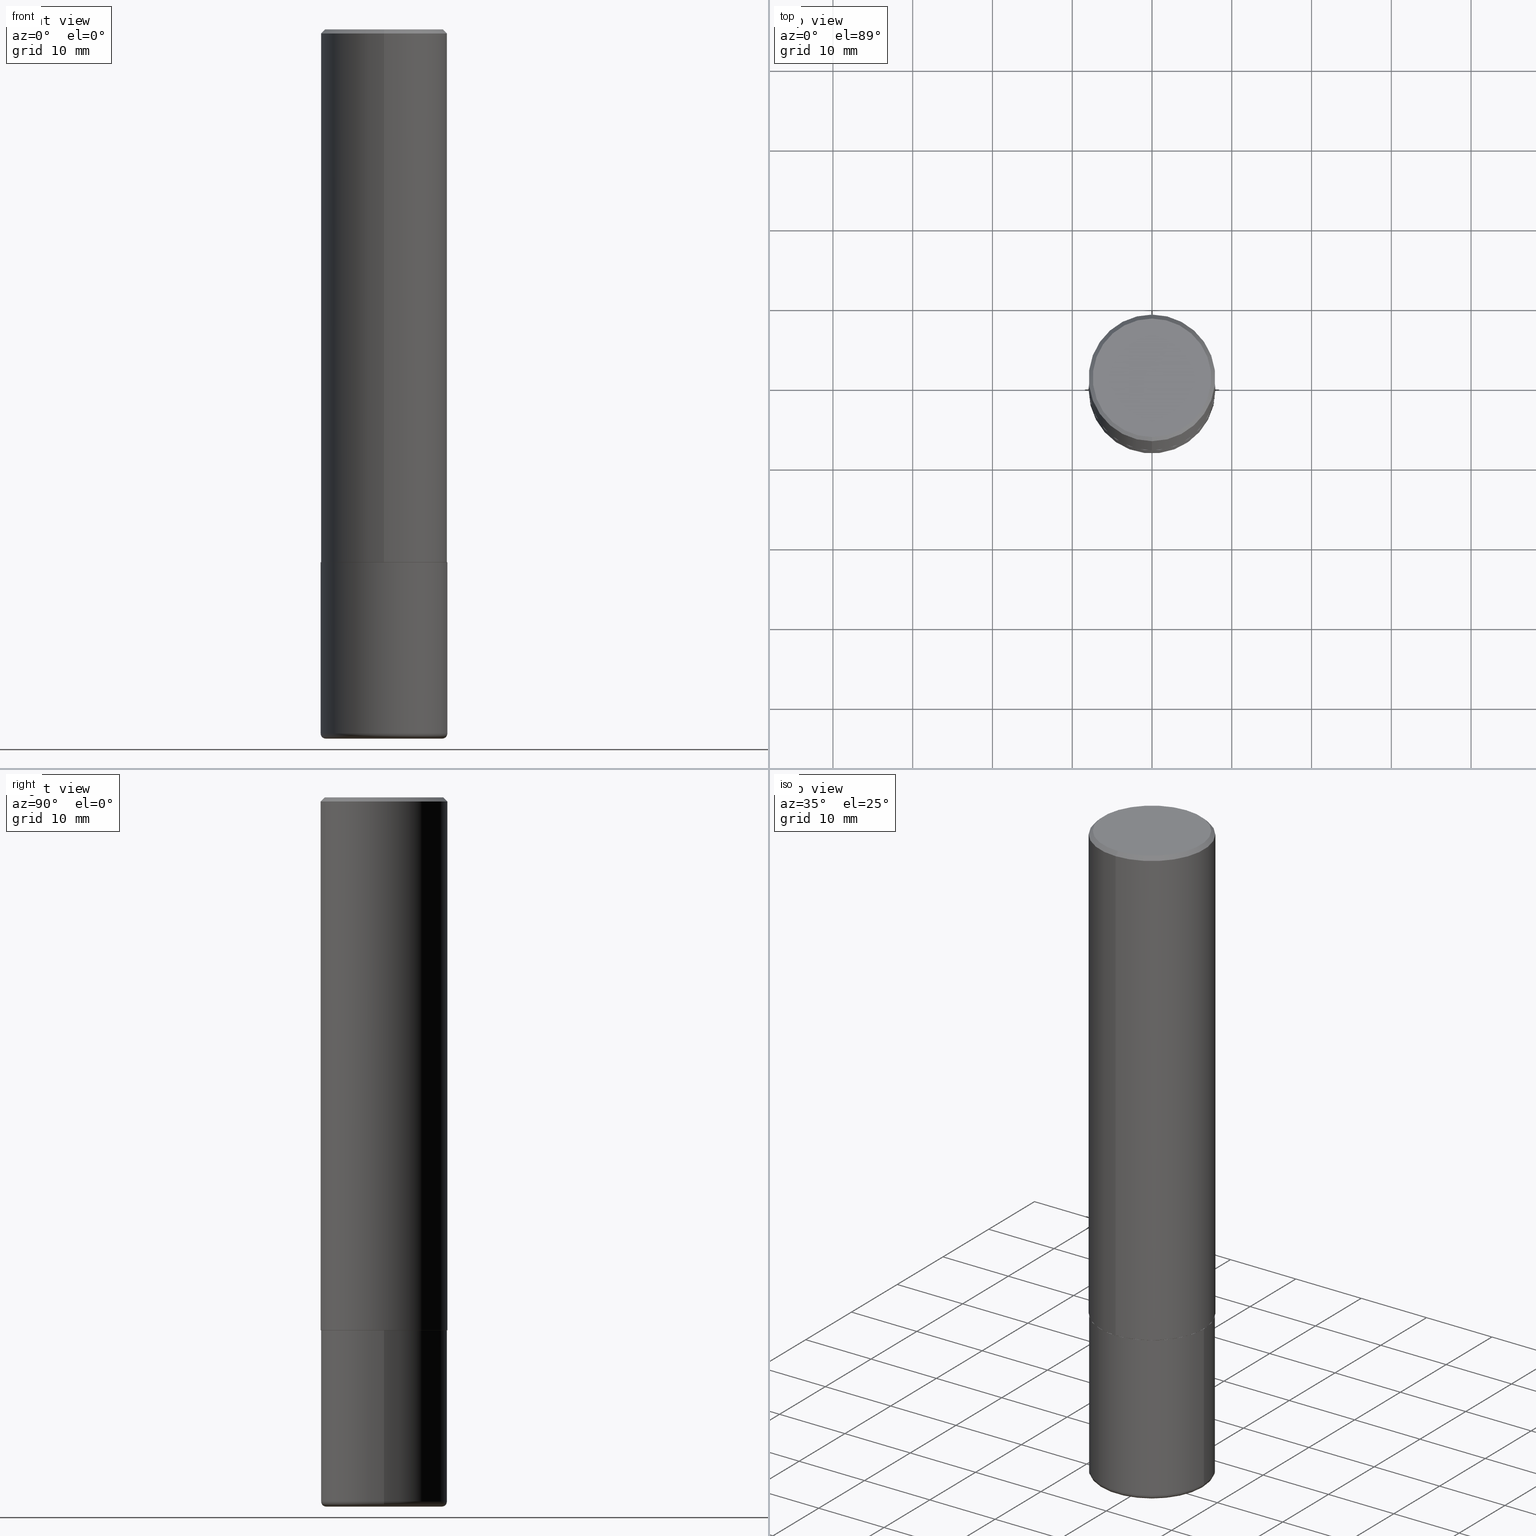
[diagram: canonical four-view strip — front | top / right | iso, engineering-drawing reading convention]
A machine part, canonical four-view strip (front | top / right | iso — engineering-drawing reading convention). The complete STEP part file that produces these views, byte-faithful:
ISO-10303-21;
HEADER;
FILE_DESCRIPTION (( 'STEP AP203' ),
    '1' );
FILE_NAME ('91246.STEP',
    '2024-03-06T17:17:19',
    ( '' ),
    ( '' ),
    'SwSTEP 2.0',
    'SolidWorks 2023',
    '' );
FILE_SCHEMA (( 'CONFIG_CONTROL_DESIGN' ));
ENDSEC;

DATA;
#1 = ORIENTED_EDGE ( 'NONE', *, *, #336, .F. ) ;
#2 = FACE_OUTER_BOUND ( 'NONE', #213, .T. ) ;
#3 = EDGE_CURVE ( 'NONE', #83, #241, #281, .T. ) ;
#4 = DIRECTION ( 'NONE',  ( -2.446380613041465709E-29, 3.490175579528058691E-15, 1.000000000000000000 ) ) ;
#5 = CIRCLE ( 'NONE', #239, 0.3114999999999999991 ) ;
#6 = PERSON_AND_ORGANIZATION_ROLE ( 'design_owner' ) ;
#7 = PRODUCT_DEFINITION_SHAPE ( 'NONE', 'NONE',  #57 ) ;
#8 = DIRECTION ( 'NONE',  ( -2.445468806185136597E-29, 3.491481338843145583E-15, 1.000000000000000000 ) ) ;
#9 = APPROVAL_ROLE ( '' ) ;
#10 = CARTESIAN_POINT ( 'NONE',  ( -2.075300644325888282E-15, -0.2925000000000001488, 8.497539228082782991E-16 ) ) ;
#11 = CALENDAR_DATE ( 2024, 6, 3 ) ;
#12 = EDGE_LOOP ( 'NONE', ( #324, #301 ) ) ;
#13 = CC_DESIGN_DATE_AND_TIME_ASSIGNMENT ( #202, #138, ( #57 ) ) ;
#14 = PRODUCT_DEFINITION_FORMATION_WITH_SPECIFIED_SOURCE ( 'ANY', '', #129, .NOT_KNOWN. ) ;
#15 = EDGE_LOOP ( 'NONE', ( #216, #244, #122, #316 ) ) ;
#16 = CARTESIAN_POINT ( 'NONE',  ( -0.2875000000000000333, -1.009008728716964076E-14, -3.475000000000000089 ) ) ;
#17 = APPROVAL_STATUS ( 'not_yet_approved' ) ;
#18 = LOCAL_TIME ( 12, 17, 19.00000000000000000, #119 ) ;
#19 = PERSON_AND_ORGANIZATION_ROLE ( 'design_supplier' ) ;
#20 = TOROIDAL_SURFACE ( 'NONE', #149, 0.2875000000000000333, 0.02499999999999966485 ) ;
#21 = EDGE_CURVE ( 'NONE', #208, #390, #38, .T. ) ;
#22 = ORIENTED_EDGE ( 'NONE', *, *, #284, .F. ) ;
#23 = CARTESIAN_POINT ( 'NONE',  ( 2.182175836776958741E-15, 0.3124999999999999445, -0.02000000000000116268 ) ) ;
#24 = FACE_OUTER_BOUND ( 'NONE', #139, .T. ) ;
#25 = VECTOR ( 'NONE', #87, 39.37007874015748143 ) ;
#26 = DIRECTION ( 'NONE',  ( -6.982962677686265133E-15, -1.000000000000000000, 3.496765431890256920E-15 ) ) ;
#27 = ORIENTED_EDGE ( 'NONE', *, *, #305, .T. ) ;
#28 = CARTESIAN_POINT ( 'NONE',  ( 8.498004101493350346E-29, -1.213289765247992943E-14, -3.475000000000000089 ) ) ;
#29 = FACE_OUTER_BOUND ( 'NONE', #104, .T. ) ;
#30 = PERSON_AND_ORGANIZATION ( #318, #121 ) ;
#31 = ADVANCED_FACE ( 'NONE', ( #118 ), #224, .F. ) ;
#32 = CYLINDRICAL_SURFACE ( 'NONE', #145, 0.3125000000000001665 ) ;
#33 = CALENDAR_DATE ( 2024, 6, 3 ) ;
#34 = DIRECTION ( 'NONE',  ( -1.000000000000000000, 6.982962677686265922E-15, -4.876176775795935793E-29 ) ) ;
#35 = ORIENTED_EDGE ( 'NONE', *, *, #3, .T. ) ;
#36 = CARTESIAN_POINT ( 'NONE',  ( 6.433981012299055047E-29, -9.179161774158793758E-15, -2.629999999999999893 ) ) ;
#37 = DIRECTION ( 'NONE',  ( -2.445468806185136597E-29, 3.491481338843145583E-15, 1.000000000000000000 ) ) ;
#38 = LINE ( 'NONE', #161, #254 ) ;
#39 = CARTESIAN_POINT ( 'NONE',  ( -0.3124999999999998890, -9.912451603229616350E-15, -3.474999999999999201 ) ) ;
#40 = AXIS2_PLACEMENT_3D ( 'NONE', #282, #114, #371 ) ;
#41 = DIRECTION ( 'NONE',  ( -6.982962677686265922E-15, -1.000000000000000000, 3.496765431890253764E-15 ) ) ;
#42 = APPROVAL_STATUS ( 'not_yet_approved' ) ;
#43 = CIRCLE ( 'NONE', #273, 0.3125000000000002776 ) ;
#44 = DIRECTION ( 'NONE',  ( -4.937700262165728178E-15, -0.7071067811867141062, 0.7071067811863809283 ) ) ;
#45 = CIRCLE ( 'NONE', #303, 0.3114999999999999991 ) ;
#46 = VERTEX_POINT ( 'NONE', #414 ) ;
#47 = CARTESIAN_POINT ( 'NONE',  ( 6.433981012299055047E-29, -9.179161774158793758E-15, -2.629999999999999893 ) ) ;
#48 = PERSON_AND_ORGANIZATION ( #318, #121 ) ;
#49 = DIRECTION ( 'NONE',  ( 7.105427357601001859E-15, 1.000000000000000000, -3.491481338843145583E-15 ) ) ;
#50 = PERSON_AND_ORGANIZATION ( #318, #121 ) ;
#51 = TOROIDAL_SURFACE ( 'NONE', #128, 0.2875000000000000333, 0.02499999999999966485 ) ;
#52 = EDGE_LOOP ( 'NONE', ( #312, #53, #177, #359 ) ) ;
#53 = ORIENTED_EDGE ( 'NONE', *, *, #226, .T. ) ;
#54 = CARTESIAN_POINT ( 'NONE',  ( 6.431582960266909339E-29, -9.182595921157471648E-15, -2.629999999999999893 ) ) ;
#55 = VERTEX_POINT ( 'NONE', #348 ) ;
#56 = LINE ( 'NONE', #409, #407 ) ;
#57 = PRODUCT_DEFINITION ( 'UNKNOWN', '', #14, #73 ) ;
#58 = CIRCLE ( 'NONE', #108, 0.02499999999999966485 ) ;
#59 = APPROVAL ( #63, 'UNSPECIFIED' ) ;
#60 =( CONVERSION_BASED_UNIT ( 'INCH', #66 ) LENGTH_UNIT ( ) NAMED_UNIT ( #355 ) );
#61 = ORIENTED_EDGE ( 'NONE', *, *, #290, .T. ) ;
#62 = CONICAL_SURFACE ( 'NONE', #349, 0.3114999999999999991, 0.7853981633976873100 ) ;
#63 = APPROVAL_STATUS ( 'not_yet_approved' ) ;
#64 = FACE_OUTER_BOUND ( 'NONE', #98, .T. ) ;
#65 = EDGE_CURVE ( 'NONE', #241, #132, #116, .T. ) ;
#66 = LENGTH_MEASURE_WITH_UNIT ( LENGTH_MEASURE( 0.02539999999999999897 ), #95 );
#67 = VERTEX_POINT ( 'NONE', #123 ) ;
#68 = CARTESIAN_POINT ( 'NONE',  ( -0.3125000000000000000, 2.220446049250313081E-15, -1.537167215704658232E-29 ) ) ;
#69 = DIRECTION ( 'NONE',  ( -6.982962677686265922E-15, -1.000000000000000000, 3.490175579528058296E-15 ) ) ;
#70 = ADVANCED_BREP_SHAPE_REPRESENTATION ( '91246', ( #214, #78, #99 ), #186 ) ;
#71 = CARTESIAN_POINT ( 'NONE',  ( 8.559140821647976968E-29, -1.222018468595100619E-14, -3.499999999999999112 ) ) ;
#72 = APPROVAL_ROLE ( '' ) ;
#73 = DESIGN_CONTEXT ( 'detailed design', #361, 'design' ) ;
#74 = ADVANCED_FACE ( 'NONE', ( #178 ), #408, .T. ) ;
#75 = CARTESIAN_POINT ( 'NONE',  ( 8.498004101493349225E-29, -1.213289765247992785E-14, -3.474999999999999201 ) ) ;
#76 = PERSON_AND_ORGANIZATION_ROLE ( 'creator' ) ;
#77 = AXIS2_PLACEMENT_3D ( 'NONE', #237, #364, #69 ) ;
#78 = MANIFOLD_SOLID_BREP ( 'Body-Move/Copy2[2]', #220 ) ;
#79 = ADVANCED_FACE ( 'NONE', ( #24 ), #326, .T. ) ;
#80 = EDGE_LOOP ( 'NONE', ( #188, #413 ) ) ;
#81 = CIRCLE ( 'NONE', #285, 0.3125000000000000000 ) ;
#82 = CARTESIAN_POINT ( 'NONE',  ( 6.431534631686015280E-29, -9.175671598579269369E-15, -2.629000000000000448 ) ) ;
#83 = VERTEX_POINT ( 'NONE', #374 ) ;
#84 = CIRCLE ( 'NONE', #225, 0.2925000000000001488 ) ;
#85 = FACE_OUTER_BOUND ( 'NONE', #164, .T. ) ;
#86 = EDGE_LOOP ( 'NONE', ( #111, #252, #228, #320 ) ) ;
#87 = DIRECTION ( 'NONE',  ( -2.445468806185136877E-29, 3.491481338843145188E-15, 1.000000000000000000 ) ) ;
#88 = DIRECTION ( 'NONE',  ( -2.445468806185136597E-29, 3.491481338843145583E-15, 1.000000000000000000 ) ) ;
#89 = DIRECTION ( 'NONE',  ( -4.851104656540958753E-15, -0.7071067811865492381, -0.7071067811865457964 ) ) ;
#90 = EDGE_CURVE ( 'NONE', #46, #55, #179, .T. ) ;
#91 = DIRECTION ( 'NONE',  ( -6.982962677686265133E-15, -1.000000000000000000, 3.490175579528058691E-15 ) ) ;
#92 = APPROVAL_PERSON_ORGANIZATION ( #48, #197, #9 ) ;
#93 = CLOSED_SHELL ( 'NONE', ( #147, #181, #330, #198, #152, #391 ) ) ;
#94 = CIRCLE ( 'NONE', #306, 0.3125000000000000000 ) ;
#95 =( LENGTH_UNIT ( ) NAMED_UNIT ( * ) SI_UNIT ( $, .METRE. ) );
#96 = EDGE_CURVE ( 'NONE', #384, #308, #183, .T. ) ;
#97 = DIRECTION ( 'NONE',  ( 1.000000000000000000, -6.982962677686269077E-15, 0.000000000000000000 ) ) ;
#98 = EDGE_LOOP ( 'NONE', ( #410, #22 ) ) ;
#99 = AXIS2_PLACEMENT_3D ( 'NONE', #155, #418, #153 ) ;
#100 = CARTESIAN_POINT ( 'NONE',  ( 6.433981012299055047E-29, -9.179161774158793758E-15, -2.629999999999999893 ) ) ;
#101 = DIRECTION ( 'NONE',  ( -6.982962677686265922E-15, -1.000000000000000000, 3.490175579528058296E-15 ) ) ;
#102 = PERSON_AND_ORGANIZATION ( #318, #121 ) ;
#103 = VERTEX_POINT ( 'NONE', #218 ) ;
#104 = EDGE_LOOP ( 'NONE', ( #369, #270, #265, #307 ) ) ;
#105 = CARTESIAN_POINT ( 'NONE',  ( 8.559140821647976968E-29, -1.222018468595100619E-14, -3.499999999999999112 ) ) ;
#106 = SHAPE_DEFINITION_REPRESENTATION ( #7, #70 ) ;
#107 = DIRECTION ( 'NONE',  ( -6.982962677686265922E-15, -1.000000000000000000, 3.507991003100177457E-15 ) ) ;
#108 = AXIS2_PLACEMENT_3D ( 'NONE', #271, #238, #135 ) ;
#109 = CC_DESIGN_PERSON_AND_ORGANIZATION_ASSIGNMENT ( #416, #387, ( #57 ) ) ;
#110 = DIRECTION ( 'NONE',  ( -6.982962677686265922E-15, -1.000000000000000000, 3.496765431890253764E-15 ) ) ;
#111 = ORIENTED_EDGE ( 'NONE', *, *, #90, .F. ) ;
#112 = ORIENTED_EDGE ( 'NONE', *, *, #342, .F. ) ;
#113 = DIRECTION ( 'NONE',  ( -2.445468806185136597E-29, 3.491481338843145583E-15, 1.000000000000000000 ) ) ;
#114 = DIRECTION ( 'NONE',  ( -2.446380613041465709E-29, 3.490175579528058691E-15, 1.000000000000000000 ) ) ;
#115 = AXIS2_PLACEMENT_3D ( 'NONE', #150, #210, #154 ) ;
#116 = LINE ( 'NONE', #291, #395 ) ;
#117 = ORIENTED_EDGE ( 'NONE', *, *, #96, .F. ) ;
#118 = FACE_OUTER_BOUND ( 'NONE', #333, .T. ) ;
#119 = COORDINATED_UNIVERSAL_TIME_OFFSET ( 5, 0, .BEHIND. ) ;
#120 = AXIS2_PLACEMENT_3D ( 'NONE', #344, #182, #26 ) ;
#121 = ORGANIZATION ( 'UNSPECIFIED', 'UNSPECIFIED', '' ) ;
#122 = ORIENTED_EDGE ( 'NONE', *, *, #249, .F. ) ;
#123 = CARTESIAN_POINT ( 'NONE',  ( -0.3125000000000000000, -8.437300737568386669E-15, -2.629999999999999893 ) ) ;
#124 = APPLICATION_PROTOCOL_DEFINITION ( 'international standard', 'config_control_design', 1994, #361 ) ;
#125 = DIRECTION ( 'NONE',  ( 2.446380613041465709E-29, -3.490175579528058691E-15, -1.000000000000000000 ) ) ;
#126 = LINE ( 'NONE', #383, #199 ) ;
#127 = PLANE ( 'NONE',  #148 ) ;
#128 = AXIS2_PLACEMENT_3D ( 'NONE', #28, #417, #130 ) ;
#129 = PRODUCT ( '91246', '91246', '', ( #288 ) ) ;
#130 = DIRECTION ( 'NONE',  ( 1.000000000000000000, -6.982962677686264344E-15, 4.883557194083111780E-29 ) ) ;
#131 = APPROVAL_DATE_TIME ( #294, #59 ) ;
#132 = VERTEX_POINT ( 'NONE', #317 ) ;
#133 = FACE_OUTER_BOUND ( 'NONE', #86, .T. ) ;
#134 = EDGE_LOOP ( 'NONE', ( #221, #343, #378, #388 ) ) ;
#135 = DIRECTION ( 'NONE',  ( 1.000000000000000000, -6.982962677686232001E-15, 0.000000000000000000 ) ) ;
#136 = EDGE_CURVE ( 'NONE', #398, #132, #351, .T. ) ;
#137 = CIRCLE ( 'NONE', #200, 0.02499999999999966485 ) ;
#138 = DATE_TIME_ROLE ( 'creation_date' ) ;
#139 = EDGE_LOOP ( 'NONE', ( #404, #174, #311, #211 ) ) ;
#140 = DIRECTION ( 'NONE',  ( -2.445468806185136597E-29, 3.491481338843145583E-15, 1.000000000000000000 ) ) ;
#141 = COORDINATED_UNIVERSAL_TIME_OFFSET ( 5, 0, .BEHIND. ) ;
#142 = EDGE_LOOP ( 'NONE', ( #146, #269, #235, #112 ) ) ;
#143 = EDGE_CURVE ( 'NONE', #55, #390, #358, .T. ) ;
#144 = AXIS2_PLACEMENT_3D ( 'NONE', #75, #267, #201 ) ;
#145 = AXIS2_PLACEMENT_3D ( 'NONE', #258, #184, #91 ) ;
#146 = ORIENTED_EDGE ( 'NONE', *, *, #305, .F. ) ;
#147 = ADVANCED_FACE ( 'NONE', ( #370 ), #175, .T. ) ;
#148 = AXIS2_PLACEMENT_3D ( 'NONE', #259, #189, #34 ) ;
#149 = AXIS2_PLACEMENT_3D ( 'NONE', #399, #195, #298 ) ;
#150 = CARTESIAN_POINT ( 'NONE',  ( 2.042516583223233723E-15, 0.2925000000000001488, -1.106437574113797536E-15 ) ) ;
#151 = DIRECTION ( 'NONE',  ( -2.446380613041465709E-29, 3.490175579528058691E-15, 1.000000000000000000 ) ) ;
#152 = ADVANCED_FACE ( 'NONE', ( #415 ), #51, .T. ) ;
#153 = DIRECTION ( 'NONE',  ( 1.000000000000000000, 0.000000000000000000, 0.000000000000000000 ) ) ;
#154 = DIRECTION ( 'NONE',  ( 6.982962677686265922E-15, 1.000000000000000000, -3.490175579528058691E-15 ) ) ;
#155 = CARTESIAN_POINT ( 'NONE',  ( 0.000000000000000000, 0.000000000000000000, 0.000000000000000000 ) ) ;
#156 = CARTESIAN_POINT ( 'NONE',  ( 6.431534631686015280E-29, -9.175671598579269369E-15, -2.629000000000000448 ) ) ;
#157 = CARTESIAN_POINT ( 'NONE',  ( 0.3124999999999998890, -1.431507348925688462E-14, -3.474999999999999201 ) ) ;
#158 = AXIS2_PLACEMENT_3D ( 'NONE', #304, #140, #328 ) ;
#159 = APPROVAL_ROLE ( '' ) ;
#160 = DIRECTION ( 'NONE',  ( 1.000000000000000000, -6.982962677686269077E-15, 0.000000000000000000 ) ) ;
#161 = CARTESIAN_POINT ( 'NONE',  ( -2.175192874099207646E-15, -0.3115000000000091585, -2.629999999999999005 ) ) ;
#162 = ADVANCED_FACE ( 'NONE', ( #2 ), #32, .T. ) ;
#163 = CC_DESIGN_PERSON_AND_ORGANIZATION_ASSIGNMENT ( #102, #76, ( #14 ) ) ;
#164 = EDGE_LOOP ( 'NONE', ( #275, #260, #247, #338 ) ) ;
#165 = CYLINDRICAL_SURFACE ( 'NONE', #158, 0.3125000000000000000 ) ;
#166 = VECTOR ( 'NONE', #240, 39.37007874015748143 ) ;
#167 = AXIS2_PLACEMENT_3D ( 'NONE', #82, #151, #110 ) ;
#168 = FACE_OUTER_BOUND ( 'NONE', #15, .T. ) ;
#169 = DIRECTION ( 'NONE',  ( -2.446380613041465709E-29, 3.490175579528058691E-15, 1.000000000000000000 ) ) ;
#170 = COORDINATED_UNIVERSAL_TIME_OFFSET ( 5, 0, .BEHIND. ) ;
#171 = UNCERTAINTY_MEASURE_WITH_UNIT (LENGTH_MEASURE( 1.000000000000000082E-05 ), #60, 'distance_accuracy_value', 'NONE');
#172 = AXIS2_PLACEMENT_3D ( 'NONE', #382, #125, #222 ) ;
#173 = CC_DESIGN_APPROVAL ( #266, ( #207 ) ) ;
#174 = ORIENTED_EDGE ( 'NONE', *, *, #3, .F. ) ;
#175 = CYLINDRICAL_SURFACE ( 'NONE', #206, 0.3125000000000000000 ) ;
#176 = EDGE_CURVE ( 'NONE', #390, #55, #43, .T. ) ;
#177 = ORIENTED_EDGE ( 'NONE', *, *, #242, .T. ) ;
#178 = FACE_OUTER_BOUND ( 'NONE', #142, .T. ) ;
#179 = LINE ( 'NONE', #313, #187 ) ;
#180 = AXIS2_PLACEMENT_3D ( 'NONE', #105, #365, #362 ) ;
#181 = ADVANCED_FACE ( 'NONE', ( #168 ), #20, .T. ) ;
#182 = DIRECTION ( 'NONE',  ( -2.446380613041465709E-29, 3.490175579528058691E-15, 1.000000000000000000 ) ) ;
#183 = LINE ( 'NONE', #251, #25 ) ;
#184 = DIRECTION ( 'NONE',  ( -2.446380613041465709E-29, 3.490175579528058691E-15, 1.000000000000000000 ) ) ;
#185 =( NAMED_UNIT ( * ) SI_UNIT ( $, .STERADIAN. ) SOLID_ANGLE_UNIT ( ) );
#186 =( GEOMETRIC_REPRESENTATION_CONTEXT ( 3 ) GLOBAL_UNCERTAINTY_ASSIGNED_CONTEXT ( ( #171 ) ) GLOBAL_UNIT_ASSIGNED_CONTEXT ( ( #60, #347, #185 ) ) REPRESENTATION_CONTEXT ( 'NONE', 'WORKASPACE' ) );
#187 = VECTOR ( 'NONE', #287, 39.37007874015748143 ) ;
#188 = ORIENTED_EDGE ( 'NONE', *, *, #321, .T. ) ;
#189 = DIRECTION ( 'NONE',  ( 2.438088387897960049E-29, -3.491481338843145188E-15, -1.000000000000000000 ) ) ;
#190 = PLANE ( 'NONE',  #272 ) ;
#191 = AXIS2_PLACEMENT_3D ( 'NONE', #71, #8, #334 ) ;
#192 = LOCAL_TIME ( 12, 17, 19.00000000000000000, #170 ) ;
#193 = ORIENTED_EDGE ( 'NONE', *, *, #176, .T. ) ;
#194 = CARTESIAN_POINT ( 'NONE',  ( 8.498004101493349225E-29, -1.213289765247992785E-14, -3.474999999999999201 ) ) ;
#195 = DIRECTION ( 'NONE',  ( -2.445468806185136597E-29, 3.491481338843145583E-15, 1.000000000000000000 ) ) ;
#196 = COORDINATED_UNIVERSAL_TIME_OFFSET ( 5, 0, .BEHIND. ) ;
#197 = APPROVAL ( #42, 'UNSPECIFIED' ) ;
#198 = ADVANCED_FACE ( 'NONE', ( #397 ), #165, .T. ) ;
#199 = VECTOR ( 'NONE', #356, 39.37007874015748143 ) ;
#200 = AXIS2_PLACEMENT_3D ( 'NONE', #16, #49, #277 ) ;
#201 = DIRECTION ( 'NONE',  ( 1.000000000000000000, -6.982962677686269077E-15, 0.000000000000000000 ) ) ;
#202 = DATE_AND_TIME ( #255, #18 ) ;
#203 = ORIENTED_EDGE ( 'NONE', *, *, #373, .T. ) ;
#204 = AXIS2_PLACEMENT_3D ( 'NONE', #36, #322, #385 ) ;
#205 = VERTEX_POINT ( 'NONE', #39 ) ;
#206 = AXIS2_PLACEMENT_3D ( 'NONE', #309, #113, #246 ) ;
#207 = SECURITY_CLASSIFICATION ( '', '', #363 ) ;
#208 = VERTEX_POINT ( 'NONE', #279 ) ;
#209 = CC_DESIGN_DATE_AND_TIME_ASSIGNMENT ( #280, #268, ( #207 ) ) ;
#210 = DIRECTION ( 'NONE',  ( 2.446380613041465709E-29, -3.490175579528058691E-15, -1.000000000000000000 ) ) ;
#211 = ORIENTED_EDGE ( 'NONE', *, *, #136, .T. ) ;
#212 = DIRECTION ( 'NONE',  ( 4.937700262164542520E-15, 0.7071067811865443531, -0.7071067811865506814 ) ) ;
#213 = EDGE_LOOP ( 'NONE', ( #193, #203, #1, #327 ) ) ;
#214 = MANIFOLD_SOLID_BREP ( 'Body-Move/Copy2[1]', #93 ) ;
#215 = CYLINDRICAL_SURFACE ( 'NONE', #340, 0.3125000000000001665 ) ;
#216 = ORIENTED_EDGE ( 'NONE', *, *, #257, .T. ) ;
#217 = EDGE_CURVE ( 'NONE', #103, #205, #137, .T. ) ;
#218 = CARTESIAN_POINT ( 'NONE',  ( -0.2875000000000000333, -1.004491296193516694E-14, -3.499999999999999112 ) ) ;
#219 = CC_DESIGN_PERSON_AND_ORGANIZATION_ASSIGNMENT ( #50, #400, ( #207 ) ) ;
#220 = CLOSED_SHELL ( 'NONE', ( #412, #162, #74, #79, #360, #264, #401, #31 ) ) ;
#221 = ORIENTED_EDGE ( 'NONE', *, *, #290, .F. ) ;
#222 = DIRECTION ( 'NONE',  ( 6.982962677686265133E-15, 1.000000000000000000, -3.496765431890256920E-15 ) ) ;
#223 = PLANE ( 'NONE',  #229 ) ;
#224 = PLANE ( 'NONE',  #115 ) ;
#225 = AXIS2_PLACEMENT_3D ( 'NONE', #325, #329, #101 ) ;
#226 = EDGE_CURVE ( 'NONE', #103, #345, #262, .T. ) ;
#227 = PERSON_AND_ORGANIZATION ( #318, #121 ) ;
#228 = ORIENTED_EDGE ( 'NONE', *, *, #21, .T. ) ;
#229 = AXIS2_PLACEMENT_3D ( 'NONE', #54, #375, #286 ) ;
#230 = PRODUCT_RELATED_PRODUCT_CATEGORY ( 'detail', '', ( #129 ) ) ;
#231 = CARTESIAN_POINT ( 'NONE',  ( 2.182175836776958741E-15, 0.3124999999999999445, -0.02000000000000116268 ) ) ;
#232 = EDGE_CURVE ( 'NONE', #208, #46, #5, .T. ) ;
#233 = CARTESIAN_POINT ( 'NONE',  ( 6.431582960266909339E-29, -9.182595921157471648E-15, -2.629999999999999893 ) ) ;
#234 = CALENDAR_DATE ( 2024, 6, 3 ) ;
#235 = ORIENTED_EDGE ( 'NONE', *, *, #336, .T. ) ;
#236 = DIRECTION ( 'NONE',  ( -6.982962677686265922E-15, -1.000000000000000000, 3.507991003100177457E-15 ) ) ;
#237 = CARTESIAN_POINT ( 'NONE',  ( 4.186306054923449458E-45, -5.972473409670785884E-31, -1.711224342036793187E-16 ) ) ;
#238 = DIRECTION ( 'NONE',  ( -6.982962677686266711E-15, -1.000000000000000000, 3.491481338843145583E-15 ) ) ;
#239 = AXIS2_PLACEMENT_3D ( 'NONE', #100, #169, #236 ) ;
#240 = DIRECTION ( 'NONE',  ( -2.445468806185136877E-29, 3.491481338843145188E-15, 1.000000000000000000 ) ) ;
#241 = VERTEX_POINT ( 'NONE', #10 ) ;
#242 = EDGE_CURVE ( 'NONE', #345, #384, #58, .T. ) ;
#243 = CC_DESIGN_SECURITY_CLASSIFICATION ( #207, ( #14 ) ) ;
#244 = ORIENTED_EDGE ( 'NONE', *, *, #217, .T. ) ;
#245 = LOCAL_TIME ( 12, 17, 19.00000000000000000, #292 ) ;
#246 = DIRECTION ( 'NONE',  ( 1.000000000000000000, -6.982962677686266711E-15, 4.876176775795936353E-29 ) ) ;
#247 = ORIENTED_EDGE ( 'NONE', *, *, #346, .T. ) ;
#248 = DIRECTION ( 'NONE',  ( 6.982962677686265133E-15, 1.000000000000000000, -3.496765431890256920E-15 ) ) ;
#249 = EDGE_CURVE ( 'NONE', #384, #205, #323, .T. ) ;
#250 = DIRECTION ( 'NONE',  ( -2.446380613041465709E-29, 3.490175579528058691E-15, 1.000000000000000000 ) ) ;
#251 = CARTESIAN_POINT ( 'NONE',  ( 0.3125000000000000000, -2.182175836776958347E-15, 1.523805242436230075E-29 ) ) ;
#252 = ORIENTED_EDGE ( 'NONE', *, *, #284, .T. ) ;
#253 = CARTESIAN_POINT ( 'NONE',  ( 4.892761226082948269E-31, -6.980351159056141343E-17, -0.02000000000000006981 ) ) ;
#254 = VECTOR ( 'NONE', #44, 39.37007874015748143 ) ;
#255 = CALENDAR_DATE ( 2024, 6, 3 ) ;
#256 = CARTESIAN_POINT ( 'NONE',  ( 0.000000000000000000, 0.000000000000000000, 0.000000000000000000 ) ) ;
#257 = EDGE_CURVE ( 'NONE', #345, #103, #379, .T. ) ;
#258 = CARTESIAN_POINT ( 'NONE',  ( 0.000000000000000000, 0.000000000000000000, 0.000000000000000000 ) ) ;
#259 = CARTESIAN_POINT ( 'NONE',  ( 1.320382771090319883E-28, -5.568728701377147127E-15, -3.499999999999999112 ) ) ;
#260 = ORIENTED_EDGE ( 'NONE', *, *, #143, .T. ) ;
#261 = DIRECTION ( 'NONE',  ( -6.982962677686265922E-15, -1.000000000000000000, 3.490175579528058691E-15 ) ) ;
#262 = CIRCLE ( 'NONE', #180, 0.2875000000000000333 ) ;
#263 = CARTESIAN_POINT ( 'NONE',  ( 6.433981012299055047E-29, -9.179161774158793758E-15, -2.629999999999999893 ) ) ;
#264 = ADVANCED_FACE ( 'NONE', ( #133 ), #62, .T. ) ;
#265 = ORIENTED_EDGE ( 'NONE', *, *, #176, .F. ) ;
#266 = APPROVAL ( #17, 'UNSPECIFIED' ) ;
#267 = DIRECTION ( 'NONE',  ( -2.445468806185136597E-29, 3.491481338843145583E-15, 1.000000000000000000 ) ) ;
#268 = DATE_TIME_ROLE ( 'classification_date' ) ;
#269 = ORIENTED_EDGE ( 'NONE', *, *, #65, .T. ) ;
#270 = ORIENTED_EDGE ( 'NONE', *, *, #90, .T. ) ;
#271 = CARTESIAN_POINT ( 'NONE',  ( 0.2875000000000000333, -1.414049942231473111E-14, -3.475000000000000089 ) ) ;
#272 = AXIS2_PLACEMENT_3D ( 'NONE', #263, #4, #261 ) ;
#273 = AXIS2_PLACEMENT_3D ( 'NONE', #156, #293, #41 ) ;
#274 = LINE ( 'NONE', #68, #166 ) ;
#275 = ORIENTED_EDGE ( 'NONE', *, *, #373, .F. ) ;
#276 = CC_DESIGN_PERSON_AND_ORGANIZATION_ASSIGNMENT ( #30, #6, ( #129 ) ) ;
#277 = DIRECTION ( 'NONE',  ( -1.000000000000000000, 7.105427357600982137E-15, 0.000000000000000000 ) ) ;
#278 = APPROVAL_DATE_TIME ( #335, #197 ) ;
#279 = CARTESIAN_POINT ( 'NONE',  ( -2.175192874099207646E-15, -0.3115000000000091585, -2.629999999999999005 ) ) ;
#280 = DATE_AND_TIME ( #11, #372 ) ;
#281 = CIRCLE ( 'NONE', #77, 0.2925000000000001488 ) ;
#282 = CARTESIAN_POINT ( 'NONE',  ( 4.892761226082948269E-31, -6.980351159056141343E-17, -0.02000000000000006981 ) ) ;
#283 = APPROVAL_PERSON_ORGANIZATION ( #227, #59, #159 ) ;
#284 = EDGE_CURVE ( 'NONE', #46, #208, #45, .T. ) ;
#285 = AXIS2_PLACEMENT_3D ( 'NONE', #233, #37, #160 ) ;
#286 = DIRECTION ( 'NONE',  ( -1.000000000000000000, 6.982962677686265922E-15, -4.876176775795935793E-29 ) ) ;
#287 = DIRECTION ( 'NONE',  ( 5.024295867789263036E-15, 0.7071067811867189912, 0.7071067811863760433 ) ) ;
#288 = MECHANICAL_CONTEXT ( 'NONE', #339, 'mechanical' ) ;
#289 = CIRCLE ( 'NONE', #40, 0.3125000000000000000 ) ;
#290 = EDGE_CURVE ( 'NONE', #205, #67, #274, .T. ) ;
#291 = CARTESIAN_POINT ( 'NONE',  ( -2.143905624303602824E-15, -0.3125000000000000555, -0.01999999999999897693 ) ) ;
#292 = COORDINATED_UNIVERSAL_TIME_OFFSET ( 5, 0, .BEHIND. ) ;
#293 = DIRECTION ( 'NONE',  ( -2.446380613041465709E-29, 3.490175579528058691E-15, 1.000000000000000000 ) ) ;
#294 = DATE_AND_TIME ( #33, #245 ) ;
#295 = EDGE_CURVE ( 'NONE', #205, #384, #392, .T. ) ;
#296 = APPLICATION_PROTOCOL_DEFINITION ( 'international standard', 'config_control_design', 1994, #339 ) ;
#297 = CALENDAR_DATE ( 2024, 6, 3 ) ;
#298 = DIRECTION ( 'NONE',  ( 1.000000000000000000, -6.982962677686264344E-15, 4.883557194083111780E-29 ) ) ;
#299 = PERSON_AND_ORGANIZATION ( #318, #121 ) ;
#300 = CC_DESIGN_APPROVAL ( #59, ( #57 ) ) ;
#301 = ORIENTED_EDGE ( 'NONE', *, *, #226, .F. ) ;
#302 = EDGE_CURVE ( 'NONE', #67, #308, #81, .T. ) ;
#303 = AXIS2_PLACEMENT_3D ( 'NONE', #393, #389, #357 ) ;
#304 = CARTESIAN_POINT ( 'NONE',  ( 0.000000000000000000, 0.000000000000000000, 0.000000000000000000 ) ) ;
#305 = EDGE_CURVE ( 'NONE', #241, #83, #84, .T. ) ;
#306 = AXIS2_PLACEMENT_3D ( 'NONE', #377, #88, #350 ) ;
#307 = ORIENTED_EDGE ( 'NONE', *, *, #21, .F. ) ;
#308 = VERTEX_POINT ( 'NONE', #394 ) ;
#309 = CARTESIAN_POINT ( 'NONE',  ( 0.000000000000000000, 0.000000000000000000, 0.000000000000000000 ) ) ;
#310 = LINE ( 'NONE', #23, #396 ) ;
#311 = ORIENTED_EDGE ( 'NONE', *, *, #342, .T. ) ;
#312 = ORIENTED_EDGE ( 'NONE', *, *, #217, .F. ) ;
#313 = CARTESIAN_POINT ( 'NONE',  ( 2.213340621892776365E-15, 0.3114999999999908398, -2.630000000000001226 ) ) ;
#314 = AXIS2_PLACEMENT_3D ( 'NONE', #253, #376, #248 ) ;
#315 = ORIENTED_EDGE ( 'NONE', *, *, #321, .F. ) ;
#316 = ORIENTED_EDGE ( 'NONE', *, *, #242, .F. ) ;
#317 = CARTESIAN_POINT ( 'NONE',  ( -2.143905624303602824E-15, -0.3125000000000000555, -0.01999999999999897693 ) ) ;
#318 = PERSON ( 'UNSPECIFIED', 'UNSPECIFIED', 'UNSPECIFIED', ('UNSPECIFIED'), ('UNSPECIFIED'), ('UNSPECIFIED') ) ;
#319 = CARTESIAN_POINT ( 'NONE',  ( -2.182175836776895633E-15, -0.3125000000000094369, -2.628999999999999115 ) ) ;
#320 = ORIENTED_EDGE ( 'NONE', *, *, #143, .F. ) ;
#321 = EDGE_CURVE ( 'NONE', #308, #67, #94, .T. ) ;
#322 = DIRECTION ( 'NONE',  ( -2.446380613041465709E-29, 3.490175579528058691E-15, 1.000000000000000000 ) ) ;
#323 = CIRCLE ( 'NONE', #144, 0.3125000000000000000 ) ;
#324 = ORIENTED_EDGE ( 'NONE', *, *, #257, .F. ) ;
#325 = CARTESIAN_POINT ( 'NONE',  ( 4.186306054923449458E-45, -5.972473409670785884E-31, -1.711224342036793187E-16 ) ) ;
#326 = CONICAL_SURFACE ( 'NONE', #314, 0.3125000000000000000, 0.7853981633974472798 ) ;
#327 = ORIENTED_EDGE ( 'NONE', *, *, #346, .F. ) ;
#328 = DIRECTION ( 'NONE',  ( 1.000000000000000000, -6.982962677686266711E-15, 4.876176775795936353E-29 ) ) ;
#329 = DIRECTION ( 'NONE',  ( -2.446380613041465709E-29, 3.490175579528058691E-15, 1.000000000000000000 ) ) ;
#330 = ADVANCED_FACE ( 'NONE', ( #411 ), #223, .F. ) ;
#331 = LOCAL_TIME ( 12, 17, 19.00000000000000000, #141 ) ;
#332 = CONICAL_SURFACE ( 'NONE', #204, 0.3114999999999999991, 0.7853981633976873100 ) ;
#333 = EDGE_LOOP ( 'NONE', ( #35, #27 ) ) ;
#334 = DIRECTION ( 'NONE',  ( 1.000000000000000000, -6.982962677686265922E-15, 0.000000000000000000 ) ) ;
#335 = DATE_AND_TIME ( #234, #331 ) ;
#336 = EDGE_CURVE ( 'NONE', #132, #398, #289, .T. ) ;
#337 = PERSON_AND_ORGANIZATION ( #318, #121 ) ;
#338 = ORIENTED_EDGE ( 'NONE', *, *, #136, .F. ) ;
#339 = APPLICATION_CONTEXT ( 'configuration controlled 3d designs of mechanical parts and assemblies' ) ;
#340 = AXIS2_PLACEMENT_3D ( 'NONE', #256, #381, #352 ) ;
#341 = CARTESIAN_POINT ( 'NONE',  ( 0.2875000000000000333, -1.422778645578580787E-14, -3.499999999999999112 ) ) ;
#342 = EDGE_CURVE ( 'NONE', #83, #398, #310, .T. ) ;
#343 = ORIENTED_EDGE ( 'NONE', *, *, #295, .T. ) ;
#344 = CARTESIAN_POINT ( 'NONE',  ( 4.892761226082948269E-31, -6.980351159056141343E-17, -0.02000000000000006981 ) ) ;
#345 = VERTEX_POINT ( 'NONE', #341 ) ;
#346 = EDGE_CURVE ( 'NONE', #390, #132, #56, .T. ) ;
#347 =( NAMED_UNIT ( * ) PLANE_ANGLE_UNIT ( ) SI_UNIT ( $, .RADIAN. ) );
#348 = CARTESIAN_POINT ( 'NONE',  ( 2.220446049250346607E-15, 0.3124999999999911182, -2.629000000000001336 ) ) ;
#349 = AXIS2_PLACEMENT_3D ( 'NONE', #47, #403, #107 ) ;
#350 = DIRECTION ( 'NONE',  ( 1.000000000000000000, -6.982962677686269077E-15, 0.000000000000000000 ) ) ;
#351 = CIRCLE ( 'NONE', #120, 0.3125000000000000000 ) ;
#352 = DIRECTION ( 'NONE',  ( -6.982962677686265133E-15, -1.000000000000000000, 3.490175579528058691E-15 ) ) ;
#353 = CC_DESIGN_APPROVAL ( #197, ( #14 ) ) ;
#354 = FACE_OUTER_BOUND ( 'NONE', #12, .T. ) ;
#355 = DIMENSIONAL_EXPONENTS ( 1.000000000000000000, 0.000000000000000000, 0.000000000000000000, 0.000000000000000000, 0.000000000000000000, 0.000000000000000000, 0.000000000000000000 ) ;
#356 = DIRECTION ( 'NONE',  ( -2.446380613041465709E-29, 3.490175579528058691E-15, 1.000000000000000000 ) ) ;
#357 = DIRECTION ( 'NONE',  ( -6.982962677686265922E-15, -1.000000000000000000, 3.507991003100177457E-15 ) ) ;
#358 = CIRCLE ( 'NONE', #167, 0.3125000000000002776 ) ;
#359 = ORIENTED_EDGE ( 'NONE', *, *, #295, .F. ) ;
#360 = ADVANCED_FACE ( 'NONE', ( #85 ), #215, .T. ) ;
#361 = APPLICATION_CONTEXT ( 'configuration controlled 3d designs of mechanical parts and assemblies' ) ;
#362 = DIRECTION ( 'NONE',  ( 1.000000000000000000, -6.982962677686265922E-15, 0.000000000000000000 ) ) ;
#363 = SECURITY_CLASSIFICATION_LEVEL ( 'unclassified' ) ;
#364 = DIRECTION ( 'NONE',  ( -2.446380613041465709E-29, 3.490175579528058691E-15, 1.000000000000000000 ) ) ;
#365 = DIRECTION ( 'NONE',  ( -2.445468806185136597E-29, 3.491481338843145583E-15, 1.000000000000000000 ) ) ;
#366 = APPROVAL_DATE_TIME ( #368, #266 ) ;
#367 = DIRECTION ( 'NONE',  ( -2.445468806185136597E-29, 3.491481338843145583E-15, 1.000000000000000000 ) ) ;
#368 = DATE_AND_TIME ( #297, #192 ) ;
#369 = ORIENTED_EDGE ( 'NONE', *, *, #232, .T. ) ;
#370 = FACE_OUTER_BOUND ( 'NONE', #402, .T. ) ;
#371 = DIRECTION ( 'NONE',  ( -6.982962677686265133E-15, -1.000000000000000000, 3.496765431890256920E-15 ) ) ;
#372 = LOCAL_TIME ( 12, 17, 19.00000000000000000, #196 ) ;
#373 = EDGE_CURVE ( 'NONE', #55, #398, #126, .T. ) ;
#374 = CARTESIAN_POINT ( 'NONE',  ( 2.112346210000096232E-15, 0.2925000000000001488, -1.191998791215637084E-15 ) ) ;
#375 = DIRECTION ( 'NONE',  ( 2.438088387897960049E-29, -3.491481338843145188E-15, -1.000000000000000000 ) ) ;
#376 = DIRECTION ( 'NONE',  ( 2.446380613041465709E-29, -3.490175579528058691E-15, -1.000000000000000000 ) ) ;
#377 = CARTESIAN_POINT ( 'NONE',  ( 6.431582960266909339E-29, -9.182595921157471648E-15, -2.629999999999999893 ) ) ;
#378 = ORIENTED_EDGE ( 'NONE', *, *, #96, .T. ) ;
#379 = CIRCLE ( 'NONE', #191, 0.2875000000000000333 ) ;
#380 = APPROVAL_PERSON_ORGANIZATION ( #337, #266, #72 ) ;
#381 = DIRECTION ( 'NONE',  ( -2.446380613041465709E-29, 3.490175579528058691E-15, 1.000000000000000000 ) ) ;
#382 = CARTESIAN_POINT ( 'NONE',  ( 4.892761226082948269E-31, -6.980351159056141343E-17, -0.02000000000000006981 ) ) ;
#383 = CARTESIAN_POINT ( 'NONE',  ( 2.220446049250313475E-15, 0.3125000000000001665, -1.090679868602518933E-15 ) ) ;
#384 = VERTEX_POINT ( 'NONE', #157 ) ;
#385 = DIRECTION ( 'NONE',  ( -6.982962677686265922E-15, -1.000000000000000000, 3.507991003100177457E-15 ) ) ;
#386 = AXIS2_PLACEMENT_3D ( 'NONE', #194, #367, #97 ) ;
#387 = PERSON_AND_ORGANIZATION_ROLE ( 'creator' ) ;
#388 = ORIENTED_EDGE ( 'NONE', *, *, #302, .F. ) ;
#389 = DIRECTION ( 'NONE',  ( -2.446380613041465709E-29, 3.490175579528058691E-15, 1.000000000000000000 ) ) ;
#390 = VERTEX_POINT ( 'NONE', #319 ) ;
#391 = ADVANCED_FACE ( 'NONE', ( #354 ), #127, .T. ) ;
#392 = CIRCLE ( 'NONE', #386, 0.3125000000000000000 ) ;
#393 = CARTESIAN_POINT ( 'NONE',  ( 6.433981012299055047E-29, -9.179161774158793758E-15, -2.629999999999999893 ) ) ;
#394 = CARTESIAN_POINT ( 'NONE',  ( 0.3125000000000000000, -1.136477175793443157E-14, -2.629999999999999893 ) ) ;
#395 = VECTOR ( 'NONE', #89, 39.37007874015748143 ) ;
#396 = VECTOR ( 'NONE', #212, 39.37007874015748143 ) ;
#397 = FACE_OUTER_BOUND ( 'NONE', #134, .T. ) ;
#398 = VERTEX_POINT ( 'NONE', #231 ) ;
#399 = CARTESIAN_POINT ( 'NONE',  ( 8.498004101493350346E-29, -1.213289765247992943E-14, -3.475000000000000089 ) ) ;
#400 = PERSON_AND_ORGANIZATION_ROLE ( 'classification_officer' ) ;
#401 = ADVANCED_FACE ( 'NONE', ( #64 ), #190, .F. ) ;
#402 = EDGE_LOOP ( 'NONE', ( #405, #61, #315, #117 ) ) ;
#403 = DIRECTION ( 'NONE',  ( -2.446380613041465709E-29, 3.490175579528058691E-15, 1.000000000000000000 ) ) ;
#404 = ORIENTED_EDGE ( 'NONE', *, *, #65, .F. ) ;
#405 = ORIENTED_EDGE ( 'NONE', *, *, #249, .T. ) ;
#406 = CC_DESIGN_PERSON_AND_ORGANIZATION_ASSIGNMENT ( #299, #19, ( #14 ) ) ;
#407 = VECTOR ( 'NONE', #250, 39.37007874015748143 ) ;
#408 = CONICAL_SURFACE ( 'NONE', #172, 0.3125000000000000000, 0.7853981633974472798 ) ;
#409 = CARTESIAN_POINT ( 'NONE',  ( -2.182175836776959136E-15, -0.3125000000000001665, 1.090679868602518933E-15 ) ) ;
#410 = ORIENTED_EDGE ( 'NONE', *, *, #232, .F. ) ;
#411 = FACE_OUTER_BOUND ( 'NONE', #80, .T. ) ;
#412 = ADVANCED_FACE ( 'NONE', ( #29 ), #332, .T. ) ;
#413 = ORIENTED_EDGE ( 'NONE', *, *, #302, .T. ) ;
#414 = CARTESIAN_POINT ( 'NONE',  ( 2.216893335571577263E-15, 0.3114999999999908398, -2.630000000000001226 ) ) ;
#415 = FACE_OUTER_BOUND ( 'NONE', #52, .T. ) ;
#416 = PERSON_AND_ORGANIZATION ( #318, #121 ) ;
#417 = DIRECTION ( 'NONE',  ( -2.445468806185136597E-29, 3.491481338843145583E-15, 1.000000000000000000 ) ) ;
#418 = DIRECTION ( 'NONE',  ( 0.000000000000000000, 0.000000000000000000, 1.000000000000000000 ) ) ;
ENDSEC;
END-ISO-10303-21;
